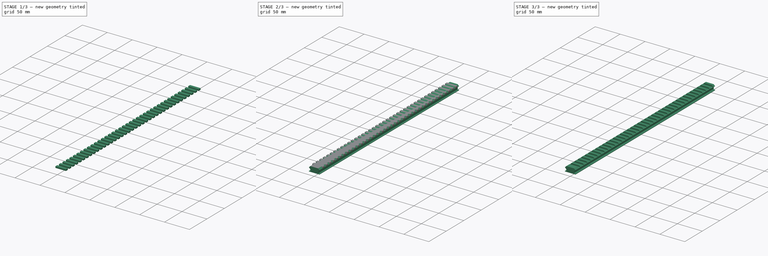
[diagram: build sequence overview — one tinted view per stage of 3, left to right]
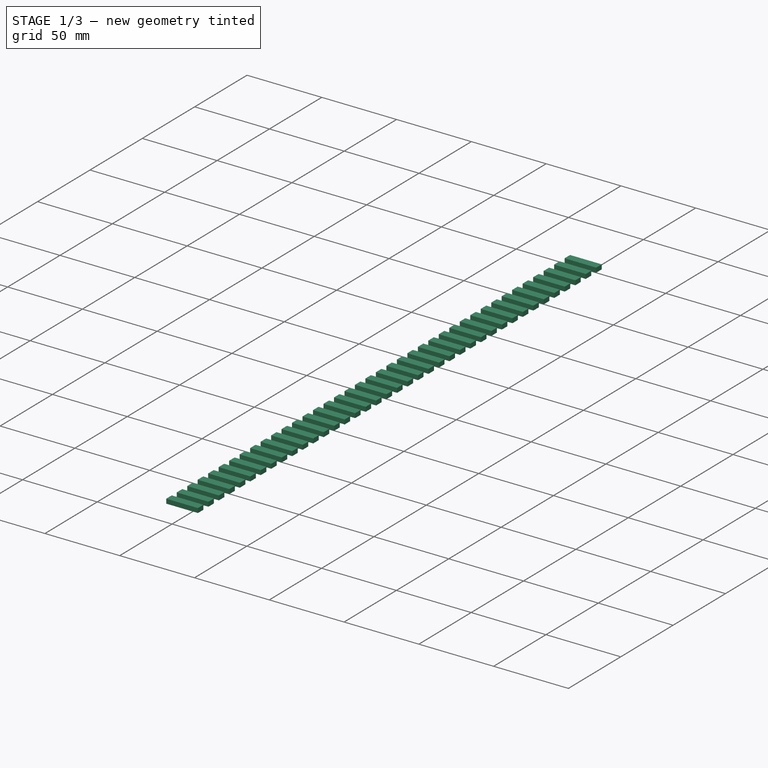
[diagram: stage 1 of 3 — iso view after this stage's code; geometry added in this stage tinted green]
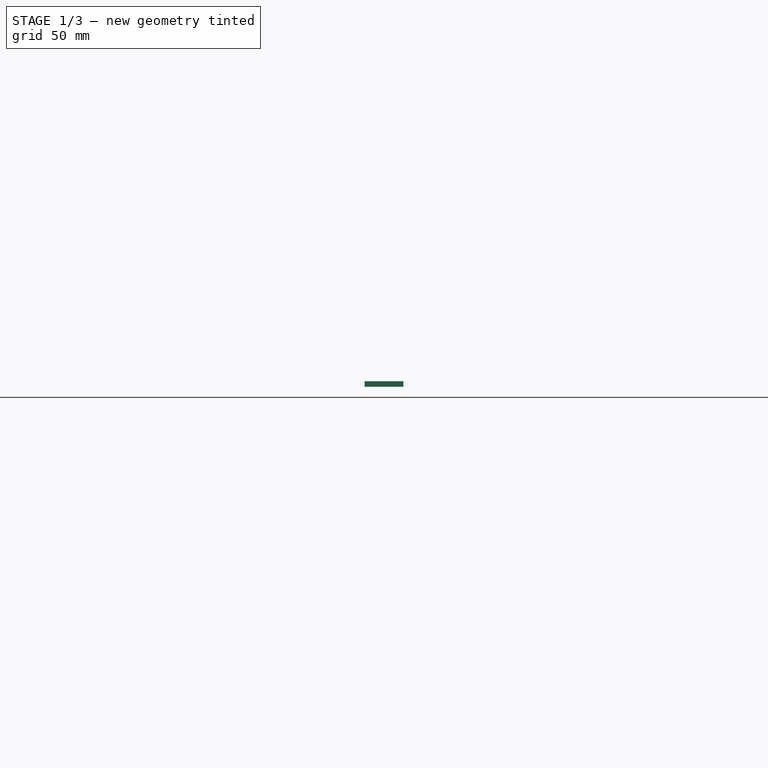
[diagram: stage 1 of 3 — front view after this stage's code; geometry added in this stage tinted green]
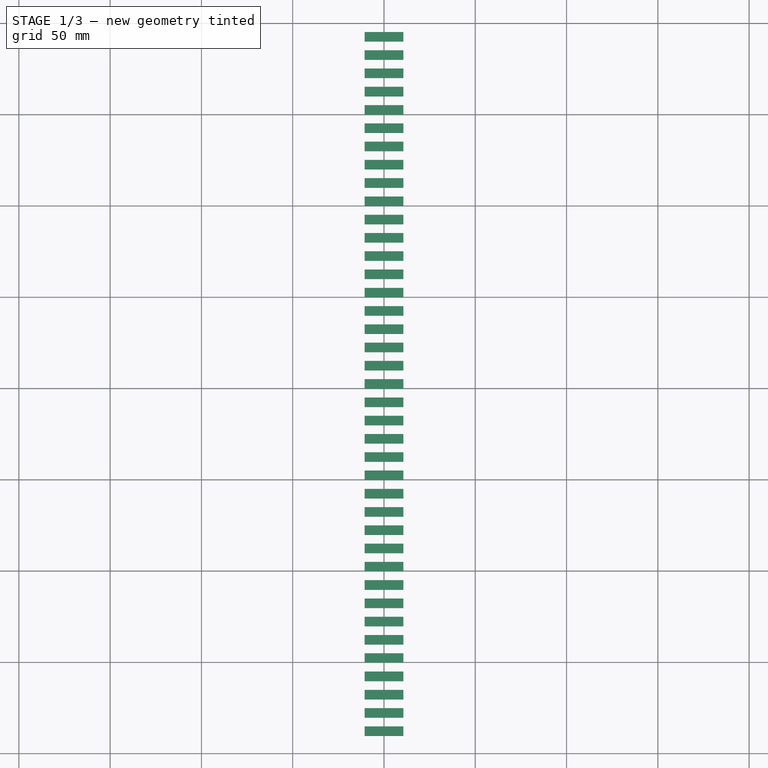
[diagram: stage 1 of 3 — top view after this stage's code; geometry added in this stage tinted green]
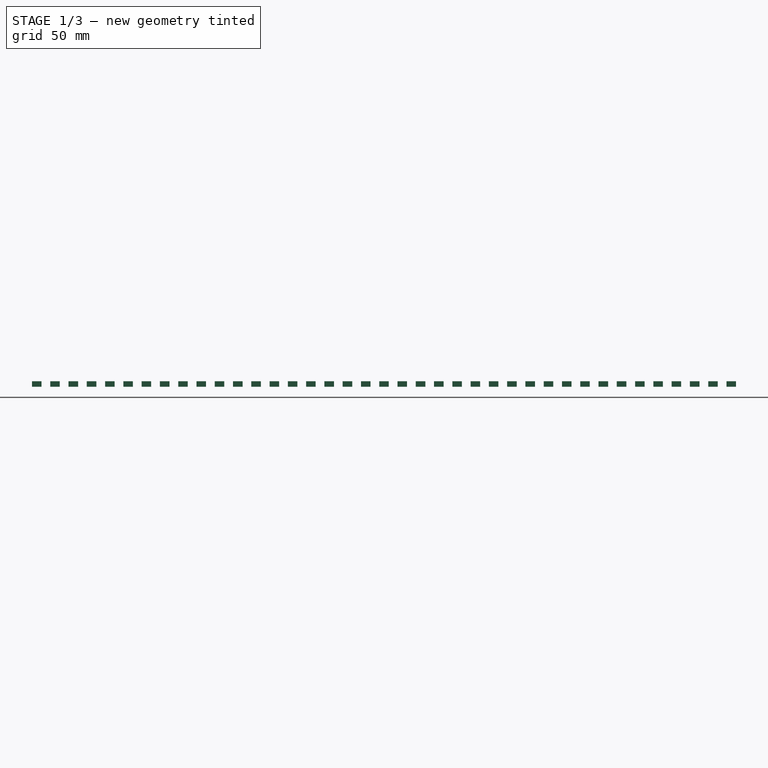
[diagram: stage 1 of 3 — right view after this stage's code; geometry added in this stage tinted green]
FCSTD DOCUMENT  (FreeCAD 1.0R1.0rc2)
Label: STANAG4694_Rail
License: All rights reserved
LicenseURL: http://en.wikipedia.org/wiki/All_rights_reserved
objects: Sketcher::SketchObject×1, Spreadsheet::Sheet×1, PartDesign::Pad×1, PartDesign::Body×1, Part::Fillet×1, Part::Box×1, Part::FeaturePython×1, Part::Cut×1
note: 9 computed .brp shape members not serialized (recipe doc carries the construction recipe); baked Part::Feature solids carry a one-line shape summary decoded from their .brp

FEATURE [Part::Box] Box  label="LockSlotTemplate"
  AttacherType = Attacher::AttachEngine3D
  Height = 3
  Length = 21.2
  Placement = pos=(-10.6,0,-3) rot=(0,0,1;0rad)
  Width = 5.23
FEATURE [Part::FeaturePython] Array  # Draft array (typed FeaturePython)
  AlwaysSyncPlacement = false
  Angle = 360
  ArrayType = 0
  Axis = (0,0,1)
  Base = -> Box
  Center = (0,0,0)
  Count = 39
  ExpandArray = false
  Fuse = false
  IntervalAxis = (0,0,0)
  IntervalX = (10.01,0,0)
  IntervalY = (0,-10.01,0)
  IntervalZ = (0,0,100)
  NumberCircles = 3
  NumberPolar = 5
  NumberX = 1
  NumberY = 39
  NumberZ = 1
  Placement = pos=(0,-10.035,0) rot=(0,0,1;0rad)
  PlacementList = 39 placements: arithmetic series from (-10.6,0,-3) step (0,-10.01,0) to (-10.6,-380.38,-3)
  RadialDistance = 50
  ScaleList = (39) [(1,1,1),(1,1,1),(1,1,1),(1,1,1),(1,1,1),(1,1,1),(1,1,1),(1,1,1),(1,1,1),(1,1,1),(1,1,1),(1,1,1),(1,1,1),(1,1,1),(1,1,1),(1,1,1),(1,1,1),(1,1,1),+21 more]
  Symmetry = 1
  TangentialDistance = 25
  expr: .Placement.Base.y = -5.23 - (<<Rail4694Config>>.rail_len - floor(<<Rail4694Config>>.rail_len / 10.01) * 10.01) / 2
  expr: NumberY = floor(<<Rail4694Config>>.rail_len / 10.01)
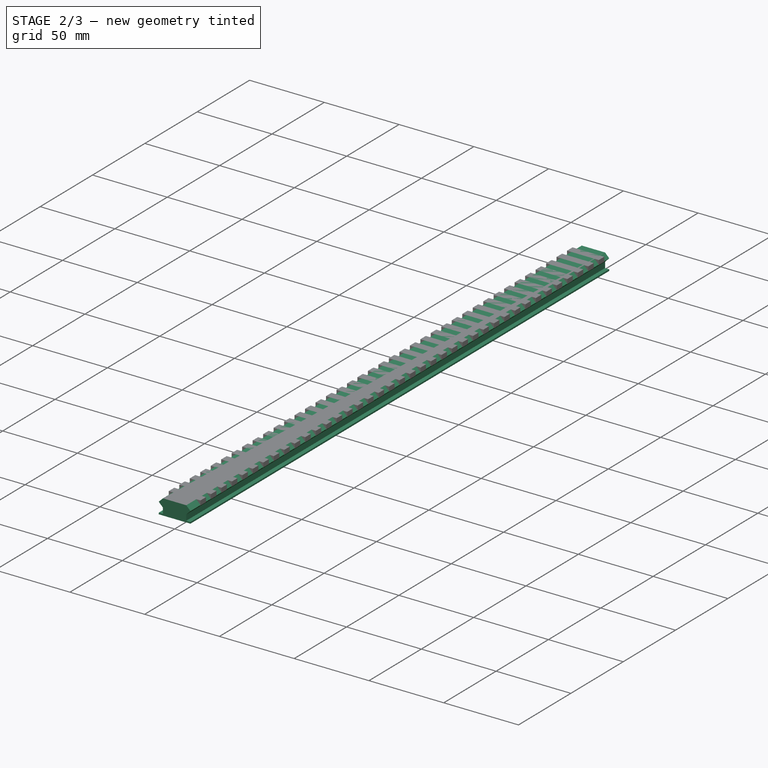
[diagram: stage 2 of 3 — iso view after this stage's code; geometry added in this stage tinted green]
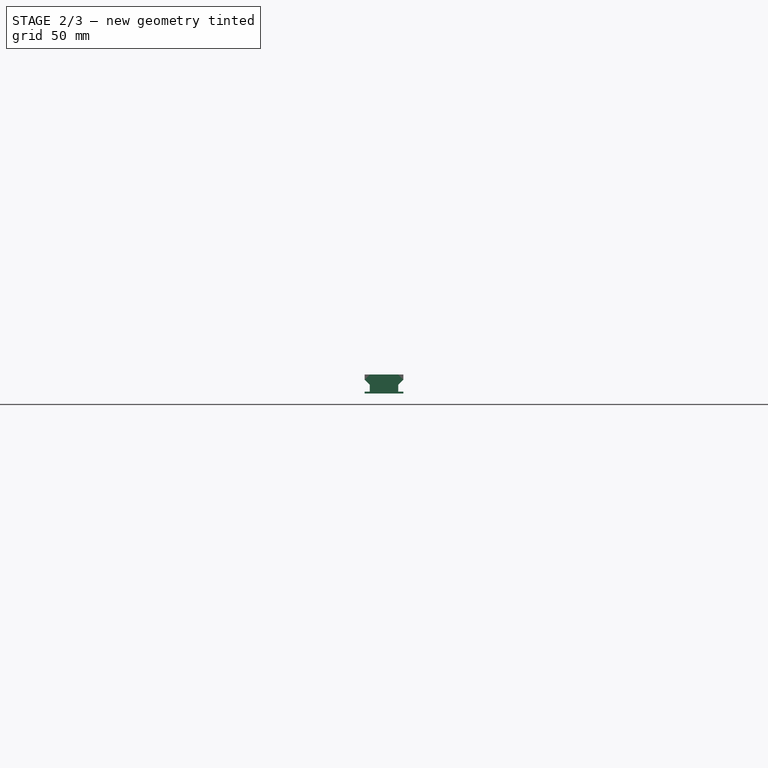
[diagram: stage 2 of 3 — front view after this stage's code; geometry added in this stage tinted green]
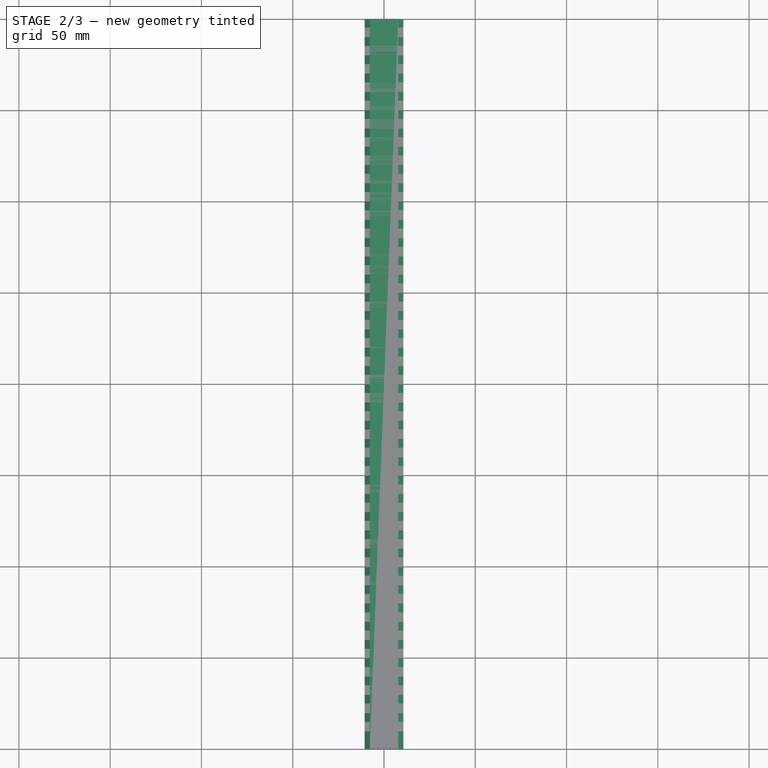
[diagram: stage 2 of 3 — top view after this stage's code; geometry added in this stage tinted green]
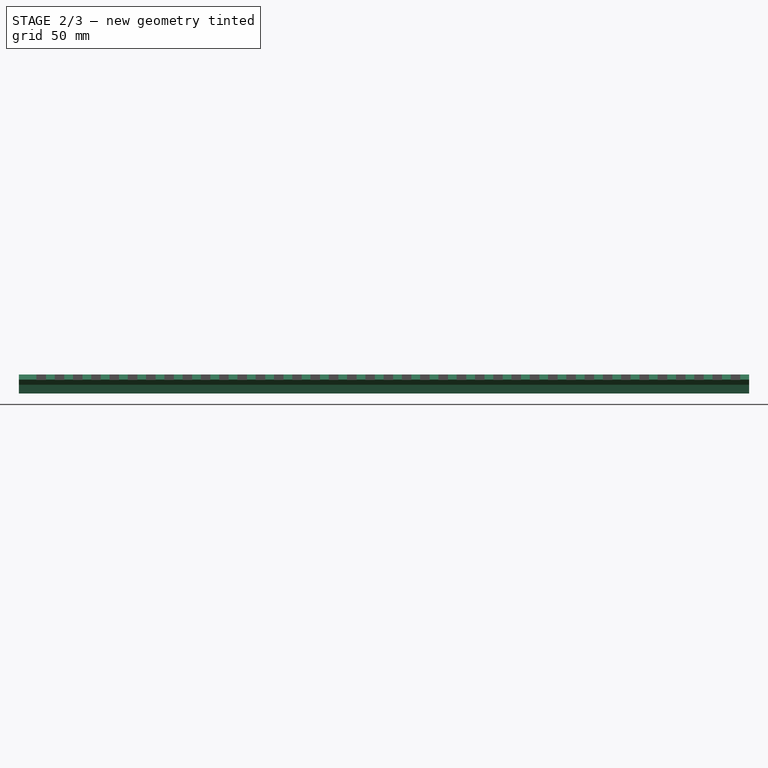
[diagram: stage 2 of 3 — right view after this stage's code; geometry added in this stage tinted green]
FEATURE [Sketcher::SketchObject] Sketch
  ArcFitTolerance = 1e-06
  AttachmentSupport = -> [XZ_Plane]
  FullyConstrained = true
  MakeInternals = false
  MapMode = 5
  Placement = pos=(0,0,0) rot=(1,0,0;1.5708rad)
  sketch-geometry (12):
    g0: LineSegment StartX=-7.8 StartY=0 StartZ=0 EndX=7.8 EndY=0 EndZ=0
    g1: LineSegment StartX=7.8 StartY=0 StartZ=0 EndX=10.6 EndY=-2.8 EndZ=0
    g2: LineSegment StartX=10.6 StartY=-2.8 StartZ=0 EndX=7.8 EndY=-5.6 EndZ=0
    g3: LineSegment StartX=7.8 StartY=-5.6 StartZ=0 EndX=7.8 EndY=-9.4 EndZ=0
    g4: LineSegment StartX=7.8 StartY=-9.4 StartZ=0 EndX=10.6 EndY=-9.4 EndZ=0
    g5: LineSegment StartX=10.6 StartY=-9.4 StartZ=0 EndX=10.6 EndY=-10.4 EndZ=0
    g6: LineSegment StartX=10.6 StartY=-10.4 StartZ=0 EndX=-10.6 EndY=-10.4 EndZ=0
    g7: LineSegment StartX=-10.6 StartY=-10.4 StartZ=0 EndX=-10.6 EndY=-9.4 EndZ=0
    g8: LineSegment StartX=-10.6 StartY=-9.4 StartZ=0 EndX=-7.8 EndY=-9.4 EndZ=0
    g9: LineSegment StartX=-7.8 StartY=-9.4 StartZ=0 EndX=-7.8 EndY=-5.6 EndZ=0
    g10: LineSegment StartX=-7.8 StartY=-5.6 StartZ=0 EndX=-10.6 EndY=-2.8 EndZ=0
    g11: LineSegment StartX=-10.6 StartY=-2.8 StartZ=0 EndX=-7.8 EndY=0 EndZ=0
  constraints (36):
    c: PointOnObject(g0,g-1)
    c: Horizontal(g0)
    c: Coincident(g0,g1)
    c: Coincident(g1,g2)
    c: Coincident(g2,g3)
    c: Vertical(g3)
    c: Coincident(g3,g4)
    c: Horizontal(g4)
    c: Coincident(g4,g5)
    c: Vertical(g5)
    c: Coincident(g5,g6)
    c: Horizontal(g6)
    c: Coincident(g6,g7)
    c: Vertical(g7)
    c: Coincident(g7,g8)
    c: Horizontal(g8)
    c: Coincident(g8,g9)
    c: Vertical(g9)
    c: Coincident(g9,g10)
    c: Coincident(g10,g11)
    c: Coincident(g11,g0)
    c: DistanceX(g0,g0) = 15.6
    c: Angle(g10,g11) = 1.5708
    c: DistanceX(g0,g-1) = 7.8
    c: Equal(g11,g2)
    c: Equal(g10,g1)
    c: DistanceX(g9,g2) = 15.6
    c: DistanceX(g9,g-1) = 7.8
    c: DistanceY(g3,g2) = 3.8
    c: Equal(g9,g3)
    c: Equal(g8,g4)
    c: DistanceX(g6,g5) = 21.2
    c: DistanceX(g10,g1) = 21.2
    c: DistanceY(g6,g7) = 1
    c: Angle(g1,g2) = 1.5708
    c: DistanceY(g2,g1) = 2.8
FEATURE [Spreadsheet::Sheet] Spreadsheet  label="Rail4694Config"
  cells = A2='Rail length; B2(rail_len)=400
FEATURE [PartDesign::Pad] Pad
  Direction = (0,-1,2e-16)
  Length = 400
  Length2 = 10
  Placement = pos=(0,0,0) rot=(1,0,0;1.5708rad)
  Profile = -> Sketch
  ReferenceAxis = -> Sketch [N_Axis]
  Suppressed = false
  Type = 0
  expr: Length = <<Rail4694Config>>.rail_len
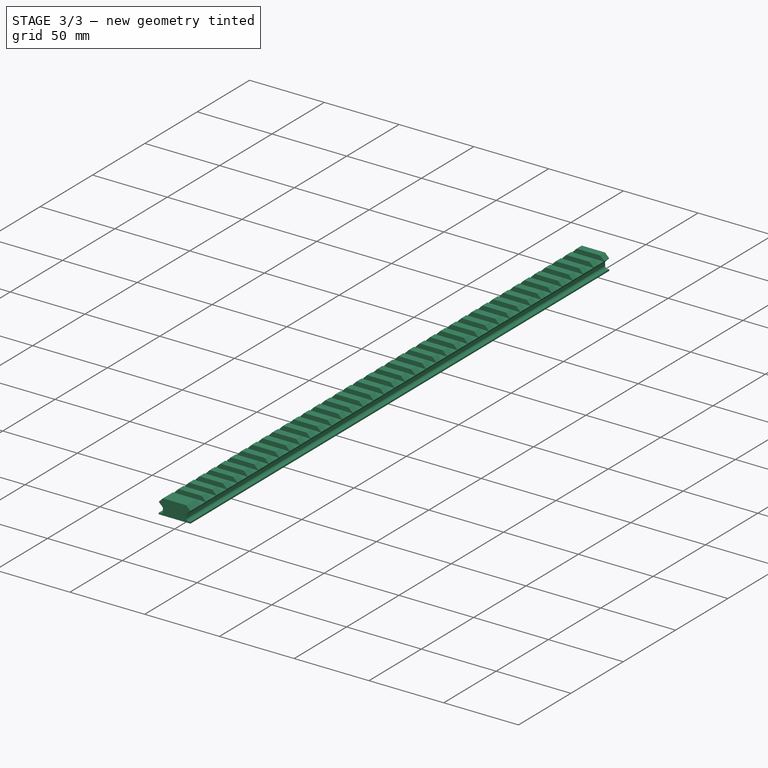
[diagram: stage 3 of 3 — iso view after this stage's code; geometry added in this stage tinted green]
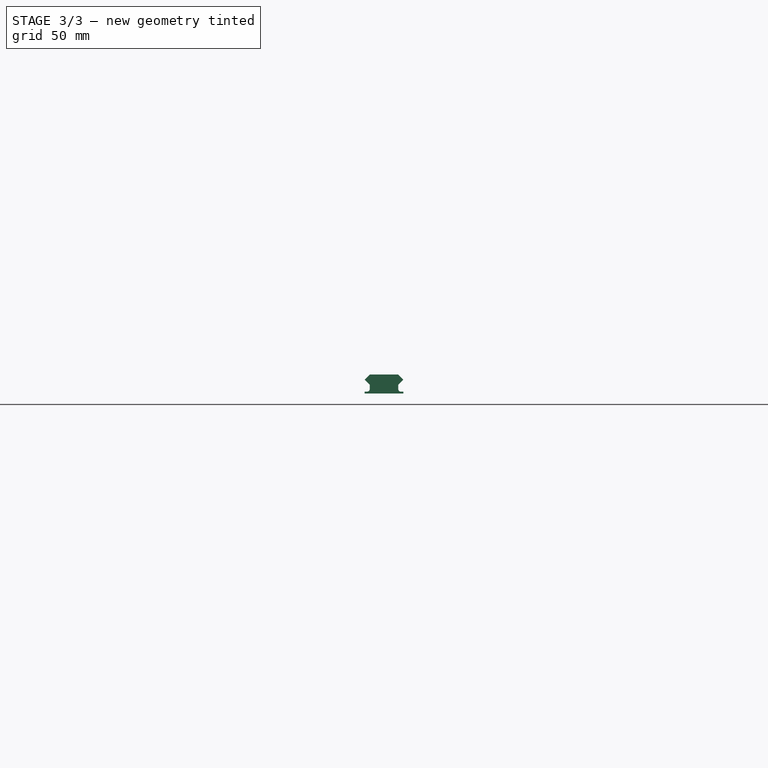
[diagram: stage 3 of 3 — front view after this stage's code; geometry added in this stage tinted green]
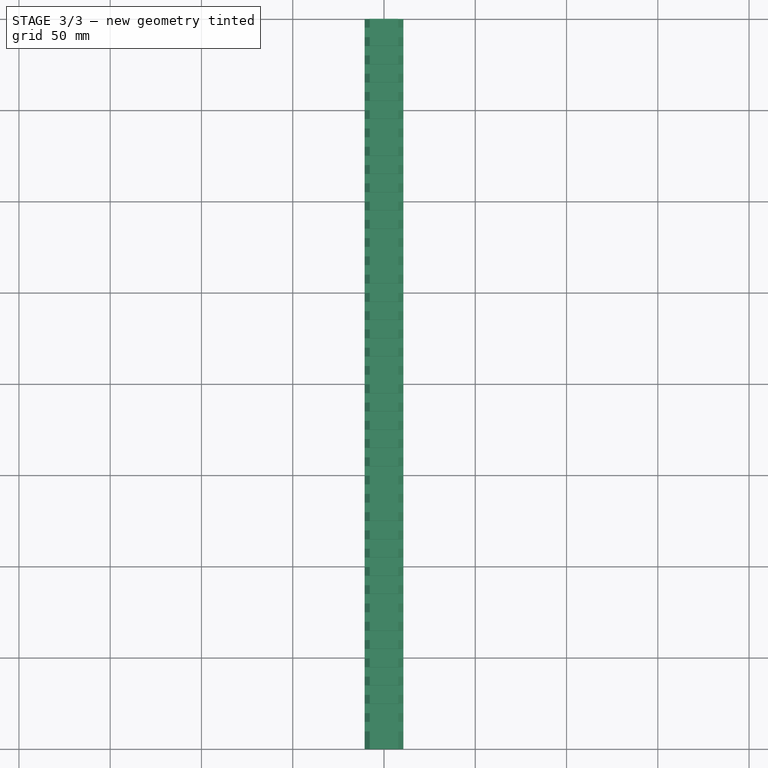
[diagram: stage 3 of 3 — top view after this stage's code; geometry added in this stage tinted green]
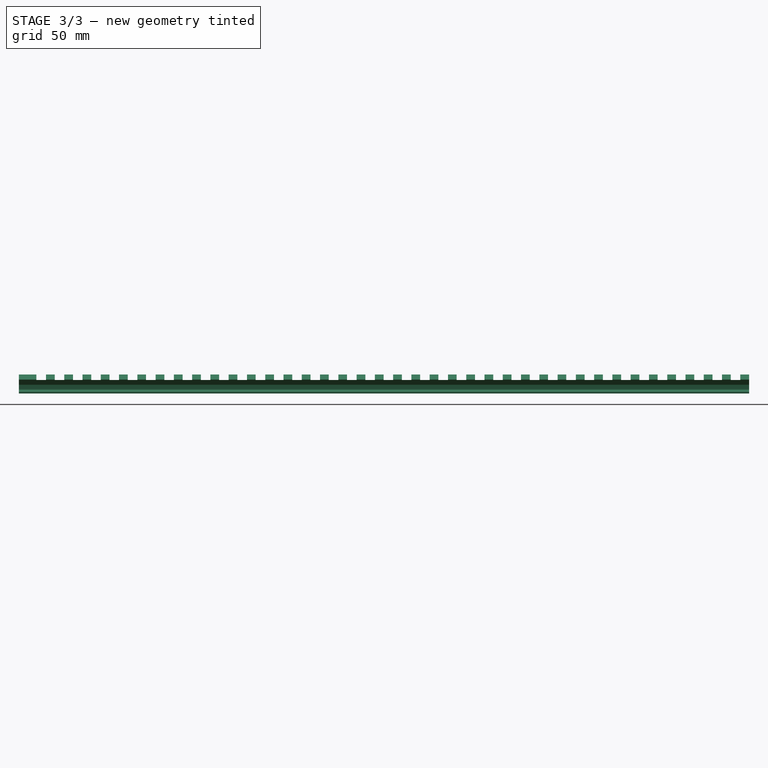
[diagram: stage 3 of 3 — right view after this stage's code; geometry added in this stage tinted green]
FEATURE [PartDesign::Body] Body  label="Rail4694_Base"
  AllowCompound = false
  Group = -> [Sketch,Pad]
  Origin = -> Origin
  Tip = -> Pad
FEATURE [Part::Fillet] Fillet
  Base = -> Pad
  EdgeLinks = -> Pad [Edge11,Edge26]
  Edges = 2 edges r=1.5: [Edge11,Edge26]
FEATURE [Part::Cut] Cut
  Base = -> Fillet
  Tool = -> Array
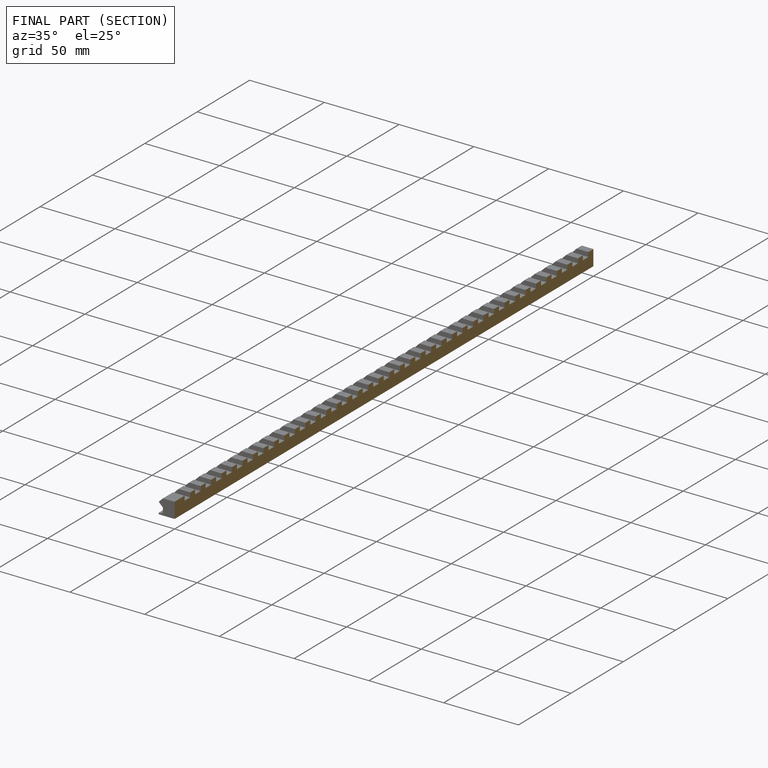
[diagram: finished part — half-section view (interior)]
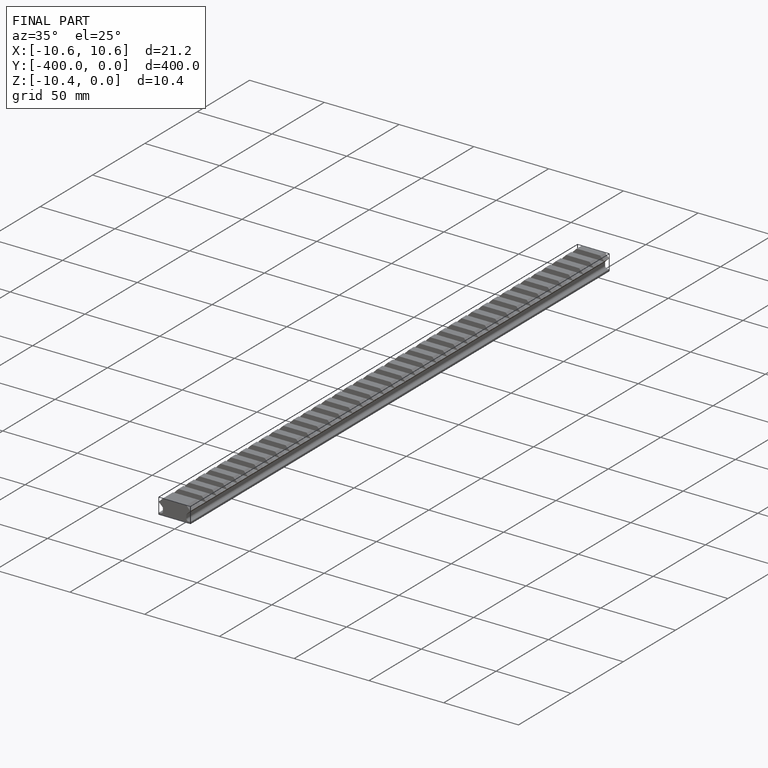
[diagram: finished part — iso view with bounding-box wireframe]
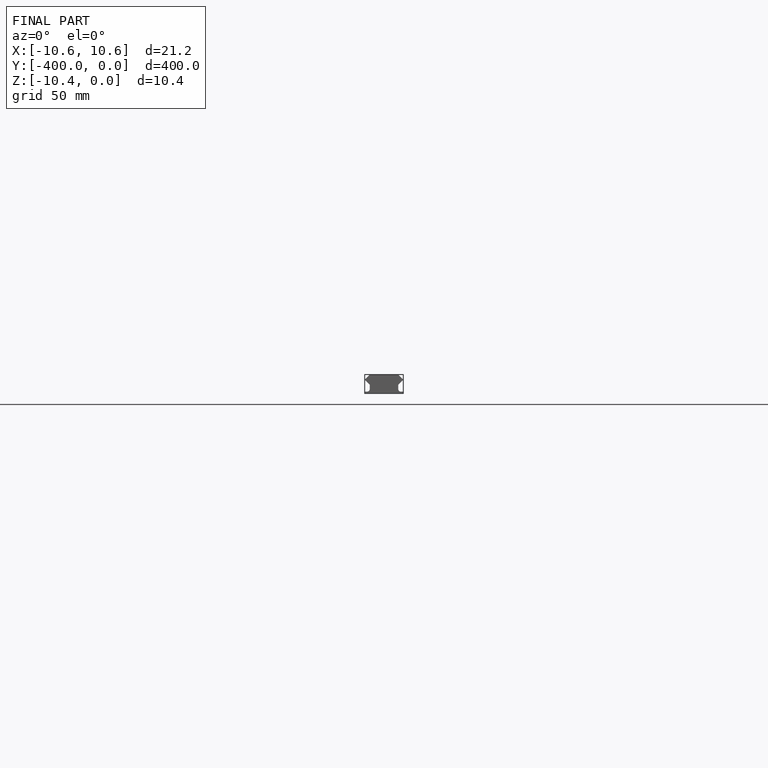
[diagram: finished part — front view with bounding-box wireframe]
